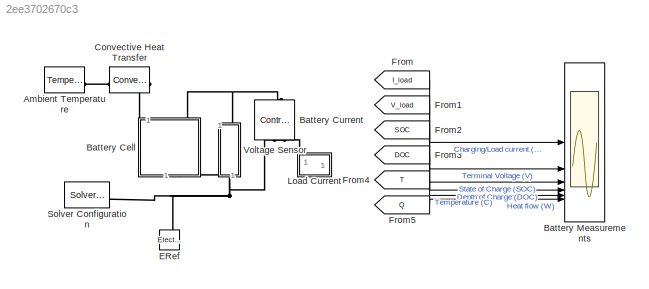
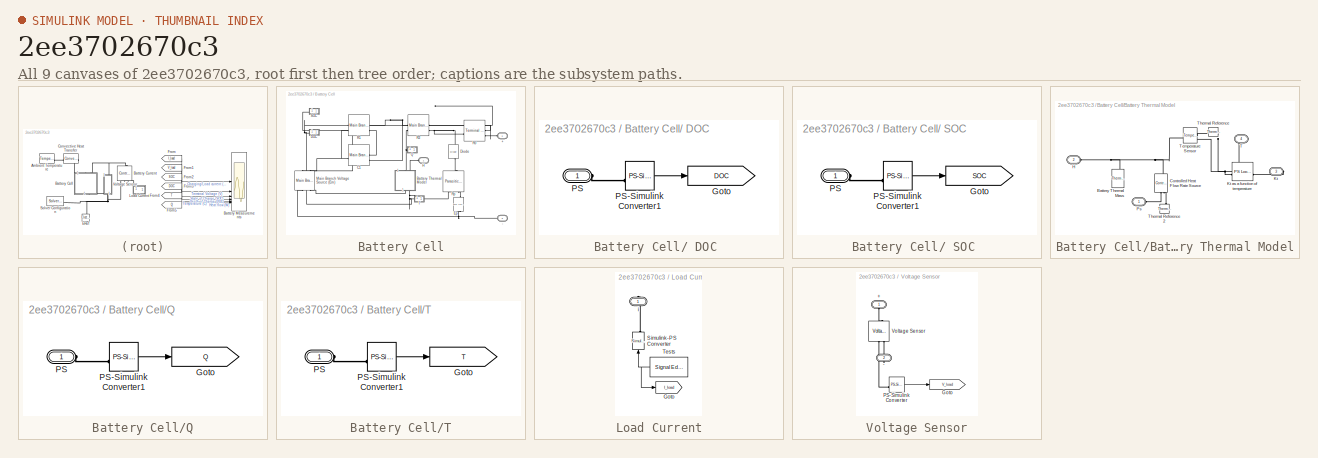
[diagram: thumbnail index - all 9 canvases of the model, root first then tree order]
MODEL slx_2ee3702670c3
KIND model
CONFIG AbsTol = 1e-3
CONFIG EnableMultiTasking = on
CONFIG FixedStep = auto
CONFIG MaxStep = auto
CONFIG MinStep = auto
CONFIG PreLoadFcn = LeadAcidBatteryINI
CONFIG RelTol = 1e-3
CONFIG SampleTimeConstraint = Unconstrained
CONFIG SolverName = VariableStepAuto
CONFIG StartTime = 0.0
CONFIG StopTime = 72000
BLOCK [Reference] Ambient Temperature  REF=fl_lib/Thermal/Thermal Sources/Temperature Source
  SourceBlock = fl_lib/Thermal/Thermal Sources/Temperature Source
  SourceType = Temperature Source
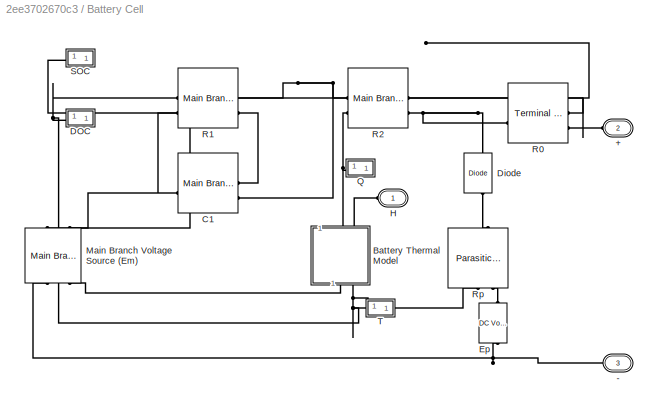
BLOCK [SubSystem] Battery Cell
  NameLocation = left
  Tag = PublishSubsystem
BLOCK [SubSystem] Battery Cell/ DOC 
BLOCK [Goto] Battery Cell/ DOC /Goto
  GotoTag = DOC
  TagVisibility = global
BLOCK [PMIOPort] Battery Cell/ DOC /PS
  Side = Left
BLOCK [Reference] Battery Cell/ DOC /PS-Simulink Converter1  REF=nesl_utility/PS-Simulink
Converter
  SourceBlock = nesl_utility/PS-Simulink\nConverter
  SourceType = PS-Simulink\nConverter
BLOCK [SubSystem] Battery Cell/ SOC 
BLOCK [Goto] Battery Cell/ SOC /Goto
  GotoTag = SOC
  TagVisibility = global
BLOCK [PMIOPort] Battery Cell/ SOC /PS
  Side = Left
BLOCK [Reference] Battery Cell/ SOC /PS-Simulink Converter1  REF=nesl_utility/PS-Simulink
Converter
  SourceBlock = nesl_utility/PS-Simulink\nConverter
  SourceType = PS-Simulink\nConverter
BLOCK [PMIOPort] Battery Cell/+
  Port = 2
  Side = Left
  Tag = PMCPort
BLOCK [PMIOPort] Battery Cell/-
  Port = 3
  Side = Right
  Tag = PMCPort
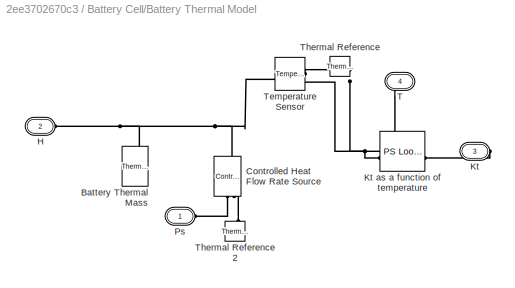
BLOCK [SubSystem] Battery Cell/Battery Thermal Model
  NameLocation = left
  Tag = PublishSubsystem
BLOCK [Reference] Battery Cell/Battery Thermal Model/Battery Thermal Mass  REF=fl_lib/Thermal/Thermal Elements/Thermal Mass
  NameLocation = left
  SourceBlock = fl_lib/Thermal/Thermal Elements/Thermal Mass
  SourceType = Thermal Mass
BLOCK [Reference] Battery Cell/Battery Thermal Model/Controlled Heat Flow Rate Source  REF=fl_lib/Thermal/Thermal Sources/Controlled Heat Flow
Rate Source
  NameLocation = right
  SourceBlock = fl_lib/Thermal/Thermal Sources/Controlled Heat Flow\nRate Source
  SourceType = Controlled Heat Flow\nRate Source
BLOCK [PMIOPort] Battery Cell/Battery Thermal Model/H
  Port = 2
  Side = Left
  Tag = PMCPort
BLOCK [PMIOPort] Battery Cell/Battery Thermal Model/Kt
  Port = 3
  Side = Right
  Tag = PMCPort
BLOCK [Reference] Battery Cell/Battery Thermal Model/Kt as a function of temperature  REF=fl_lib/Physical Signals/Lookup Tables/PS Lookup Table (1D)
  SourceBlock = fl_lib/Physical Signals/Lookup Tables/PS Lookup Table (1D)
  SourceType = PS Lookup Table (1D)
BLOCK [PMIOPort] Battery Cell/Battery Thermal Model/Ps
  Side = Left
  Tag = PMCPort
BLOCK [PMIOPort] Battery Cell/Battery Thermal Model/T
  Port = 4
  Side = Right
  Tag = PMCPort
BLOCK [Reference] Battery Cell/Battery Thermal Model/Temperature Sensor  REF=fl_lib/Thermal/Thermal Sensors/Temperature Sensor
  SourceBlock = fl_lib/Thermal/Thermal Sensors/Temperature Sensor
  SourceType = Temperature Sensor
BLOCK [Reference] Battery Cell/Battery Thermal Model/Thermal Reference  REF=fl_lib/Thermal/Thermal Elements/Thermal Reference
  NameLocation = top
  SourceBlock = fl_lib/Thermal/Thermal Elements/Thermal Reference
  SourceType = Thermal Reference
BLOCK [Reference] Battery Cell/Battery Thermal Model/Thermal Reference2  REF=fl_lib/Thermal/Thermal Elements/Thermal Reference
  NameLocation = right
  SourceBlock = fl_lib/Thermal/Thermal Elements/Thermal Reference
  SourceType = Thermal Reference
BLOCK [Reference] Battery Cell/C1  REF=LeadAcidBattery_lib/Main Branch
Capacitance, C1
  SourceBlock = LeadAcidBattery_lib/Main Branch\nCapacitance, C1
  SourceType = Main Branch\nCapacitance, C1
BLOCK [Reference] Battery Cell/Diode  REF=fl_lib/Electrical/Electrical Elements/Diode
  NameLocation = left
  SourceBlock = fl_lib/Electrical/Electrical Elements/Diode
  SourceType = Diode
BLOCK [Reference] Battery Cell/Ep  REF=fl_lib/Electrical/Electrical Sources/DC Voltage Source
  NameLocation = right
  SourceBlock = fl_lib/Electrical/Electrical Sources/DC Voltage Source
  SourceType = DC Voltage Source
BLOCK [PMIOPort] Battery Cell/H
  Side = Left
  Tag = PMCPort
BLOCK [Reference] Battery Cell/Main Branch Voltage Source (Em)  REF=LeadAcidBattery_lib/Main Branch Voltage
Source, Em
  NameLocation = right
  SourceBlock = LeadAcidBattery_lib/Main Branch Voltage\nSource, Em
  SourceType = Main Branch Voltage\nSource, Em
BLOCK [SubSystem] Battery Cell/Q
BLOCK [Goto] Battery Cell/Q/Goto
  GotoTag = Q
  TagVisibility = global
BLOCK [PMIOPort] Battery Cell/Q/PS
  Side = Left
BLOCK [Reference] Battery Cell/Q/PS-Simulink Converter1  REF=nesl_utility/PS-Simulink
Converter
  SourceBlock = nesl_utility/PS-Simulink\nConverter
  SourceType = PS-Simulink\nConverter
BLOCK [Reference] Battery Cell/R0  REF=LeadAcidBattery_lib/Terminal Resistance,
R0
  SourceBlock = LeadAcidBattery_lib/Terminal Resistance,\nR0
  SourceType = Terminal Resistance,\nR0
BLOCK [Reference] Battery Cell/R1  REF=LeadAcidBattery_lib/Main Branch
Resistance, R1
  SourceBlock = LeadAcidBattery_lib/Main Branch\nResistance, R1
  SourceType = Main Branch\nResistance, R1
BLOCK [Reference] Battery Cell/R2  REF=LeadAcidBattery_lib/Main Branch
Resistance, R2
  SourceBlock = LeadAcidBattery_lib/Main Branch\nResistance, R2
  SourceType = Main Branch\nResistance, R2
BLOCK [Reference] Battery Cell/Rp  REF=LeadAcidBattery_lib/Parasitic Branch
Resistance, Rp
  NameLocation = left
  SourceBlock = LeadAcidBattery_lib/Parasitic Branch\nResistance, Rp
  SourceType = Parasitic Branch\nResistance, Rp
BLOCK [SubSystem] Battery Cell/T
BLOCK [Goto] Battery Cell/T/Goto
  GotoTag = T
  TagVisibility = global
BLOCK [PMIOPort] Battery Cell/T/PS
  Side = Left
BLOCK [Reference] Battery Cell/T/PS-Simulink Converter1  REF=nesl_utility/PS-Simulink
Converter
  SourceBlock = nesl_utility/PS-Simulink\nConverter
  SourceType = PS-Simulink\nConverter
BLOCK [Reference] Battery Current  REF=fl_lib/Electrical/Electrical Sources/Controlled Current
Source
  NameLocation = right
  SourceBlock = fl_lib/Electrical/Electrical Sources/Controlled Current\nSource
  SourceType = Controlled Current\nSource
BLOCK [Scope] Battery Measurements
  Floating = off
  NumInputPorts = 6
  ScopeSpecificationString = Simulink.scopes.TimeScopeBlockCfg('CurrentConfiguration', extmgr.ConfigurationSet(extmgr.Configuration('Core','General UI',true,'FigureColor',[0.501960784313725 0.501960784313725 0.501960784313725]),extmgr.Configuration('Core','Source UI',true),extmgr.Configuration('Sources','WiredSimulink',true,'DataLoggingSaveFormat','StructureWithTime','DataLoggingDecimation','1'),extmgr.Configuration('Visuals'...<+8349ch>
  Tag = PublishScope
BLOCK [Reference] Convective Heat Transfer  REF=fl_lib/Thermal/Thermal Elements/Convective Heat
Transfer
  NameLocation = top
  SourceBlock = fl_lib/Thermal/Thermal Elements/Convective Heat\nTransfer
  SourceType = Convective Heat\nTransfer
BLOCK [Reference] ERef  REF=fl_lib/Electrical/Electrical Elements/Electrical Reference
  NameLocation = right
  SourceBlock = fl_lib/Electrical/Electrical Elements/Electrical Reference
  SourceType = Electrical Reference
BLOCK [From] From
  GotoTag = I_load
  TagVisibility = global
BLOCK [From] From1
  GotoTag = V_load
  TagVisibility = global
BLOCK [From] From2
  GotoTag = SOC
  TagVisibility = global
BLOCK [From] From3
  GotoTag = DOC
  TagVisibility = global
BLOCK [From] From4
  GotoTag = T
  TagVisibility = global
BLOCK [From] From5
  GotoTag = Q
  TagVisibility = global
BLOCK [SubSystem] Load Current
BLOCK [Goto] Load Current/Goto
  GotoTag = I_load
  NameLocation = top
  TagVisibility = global
BLOCK [Reference] Load Current/Simulink-PS Converter  REF=nesl_utility/Simulink-PS
Converter
  NameLocation = right
  SourceBlock = nesl_utility/Simulink-PS\nConverter
  SourceType = Simulink-PS\nConverter
BLOCK [Reference] Load Current/Tests  REF=SignalEditorBlockLib/Signal Editor
  SourceBlock = SignalEditorBlockLib/Signal Editor
  SourceType = SignalEditor
  UserDataPersistent = on
BLOCK [PMIOPort] Load Current/i
  NameLocation = right
  Side = Right
BLOCK [Reference] Solver Configuration  REF=nesl_utility/Solver
Configuration
  SourceBlock = nesl_utility/Solver\nConfiguration
  SourceType = Solver\nConfiguration
BLOCK [SubSystem] Voltage Sensor
  NameLocation = left
BLOCK [PMIOPort] Voltage Sensor/+
  NameLocation = right
  Side = Left
BLOCK [PMIOPort] Voltage Sensor/-
  NameLocation = right
  Port = 2
  Side = Right
BLOCK [Goto] Voltage Sensor/Goto
  GotoTag = V_load
  TagVisibility = global
BLOCK [Reference] Voltage Sensor/PS-Simulink Converter  REF=nesl_utility/PS-Simulink
Converter
  SourceBlock = nesl_utility/PS-Simulink\nConverter
  SourceType = PS-Simulink\nConverter
BLOCK [Reference] Voltage Sensor/Voltage Sensor  REF=fl_lib/Electrical/Electrical Sensors/Voltage Sensor
  NameLocation = right
  SourceBlock = fl_lib/Electrical/Electrical Sensors/Voltage Sensor
  SourceType = Voltage Sensor
LINE Battery Cell/ DOC /PS-Simulink Converter1:1 -> Battery Cell/ DOC /Goto:1
LINE Battery Cell/ SOC /PS-Simulink Converter1:1 -> Battery Cell/ SOC /Goto:1
LINE Battery Cell/Q/PS-Simulink Converter1:1 -> Battery Cell/Q/Goto:1
LINE Battery Cell/T/PS-Simulink Converter1:1 -> Battery Cell/T/Goto:1
LINE From1:1 -> Battery Measurements:2
LINE From2:1 -> Battery Measurements:3
LINE From3:1 -> Battery Measurements:4
LINE From4:1 -> Battery Measurements:5
LINE From5:1 -> Battery Measurements:6
LINE From:1 -> Battery Measurements:1
NET Load Current/Tests:1 -> Load Current/Goto:1, Load Current/Simulink-PS Converter:1
LINE Voltage Sensor/PS-Simulink Converter:1 -> Voltage Sensor/Goto:1
PLINE Ambient Temperature:LConn1 -- Convective Heat Transfer:LConn1
PLINE Battery Cell/ DOC /PS-Simulink Converter1:LConn1 -- Battery Cell/ DOC /PS:RConn1
PNET net1: Battery Cell/ DOC :LConn1 -- Battery Cell/Main Branch Voltage Source (Em):LConn2 -- Battery Cell/R1:RConn1
PLINE Battery Cell/ SOC /PS-Simulink Converter1:LConn1 -- Battery Cell/ SOC /PS:RConn1
PNET net2: Battery Cell/ SOC :LConn1 -- Battery Cell/Main Branch Voltage Source (Em):LConn1 -- Battery Cell/R0:LConn1 -- Battery Cell/R2:LConn1
PLINE Battery Cell/+:RConn1 -- Battery Cell/R0:LConn2
PNET net3: Battery Cell/-:RConn1 -- Battery Cell/Ep:RConn1 -- Battery Cell/Main Branch Voltage Source (Em):RConn1
PNET net4: Battery Cell/Battery Thermal Model/Battery Thermal Mass:LConn1 -- Battery Cell/Battery Thermal Model/Controlled Heat Flow Rate Source:LConn1 -- Battery Cell/Battery Thermal Model/H:RConn1 -- Battery Cell/Battery Thermal Model/Temperature Sensor:LConn1
PLINE Battery Cell/Battery Thermal Model/Controlled Heat Flow Rate Source:RConn1 -- Battery Cell/Battery Thermal Model/Ps:RConn1
PLINE Battery Cell/Battery Thermal Model/Controlled Heat Flow Rate Source:RConn2 -- Battery Cell/Battery Thermal Model/Thermal Reference2:LConn1
PNET net5: Battery Cell/Battery Thermal Model/Kt as a function of temperature:LConn1 -- Battery Cell/Battery Thermal Model/T:RConn1 -- Battery Cell/Battery Thermal Model/Temperature Sensor:RConn2
PLINE Battery Cell/Battery Thermal Model/Kt as a function of temperature:RConn1 -- Battery Cell/Battery Thermal Model/Kt:RConn1
PLINE Battery Cell/Battery Thermal Model/Temperature Sensor:RConn1 -- Battery Cell/Battery Thermal Model/Thermal Reference:LConn1
PNET net6: Battery Cell/Battery Thermal Model:LConn1 -- Battery Cell/Q:LConn1 -- Battery Cell/R2:RConn2
PLINE Battery Cell/Battery Thermal Model:LConn2 -- Battery Cell/H:RConn1
PLINE Battery Cell/Battery Thermal Model:RConn1 -- Battery Cell/Main Branch Voltage Source (Em):RConn3
PNET net7: Battery Cell/Battery Thermal Model:RConn2 -- Battery Cell/Main Branch Voltage Source (Em):RConn2 -- Battery Cell/Rp:RConn1 -- Battery Cell/T:LConn1
PLINE Battery Cell/C1:LConn1 -- Battery Cell/R1:LConn2
PNET net8: Battery Cell/C1:LConn2 -- Battery Cell/R1:LConn1 -- Battery Cell/R2:RConn1
PNET net9: Battery Cell/C1:RConn1 -- Battery Cell/Main Branch Voltage Source (Em):LConn3 -- Battery Cell/R1:RConn2
PNET net10: Battery Cell/Diode:LConn1 -- Battery Cell/R0:RConn1 -- Battery Cell/R2:LConn2
PLINE Battery Cell/Diode:RConn1 -- Battery Cell/Rp:LConn1
PLINE Battery Cell/Ep:LConn1 -- Battery Cell/Rp:RConn2
PLINE Battery Cell/Q/PS-Simulink Converter1:LConn1 -- Battery Cell/Q/PS:RConn1
PLINE Battery Cell/T/PS-Simulink Converter1:LConn1 -- Battery Cell/T/PS:RConn1
PLINE Battery Cell:LConn1 -- Convective Heat Transfer:RConn1
PNET net11: Battery Cell:LConn2 -- Battery Current:LConn1 -- Voltage Sensor:LConn1
PNET net12: Battery Cell:RConn1 -- Battery Current:RConn2 -- ERef:LConn1 -- Solver Configuration:RConn1 -- Voltage Sensor:RConn1
PLINE Battery Current:RConn1 -- Load Current:RConn1
PLINE Load Current/Simulink-PS Converter:RConn1 -- Load Current/i:RConn1
PLINE Voltage Sensor/+:RConn1 -- Voltage Sensor/Voltage Sensor:LConn1
PLINE Voltage Sensor/-:RConn1 -- Voltage Sensor/Voltage Sensor:RConn2
PLINE Voltage Sensor/PS-Simulink Converter:LConn1 -- Voltage Sensor/Voltage Sensor:RConn1
note: NET lines group one-source signal fan-out (src -> all destinations, sorted); 1:1 wires keep LINE; PNET lines group multi-terminal physical nets as a canonical sorted terminal list (undirected conserving connections); 2-terminal nets keep the pairwise PLINE form
